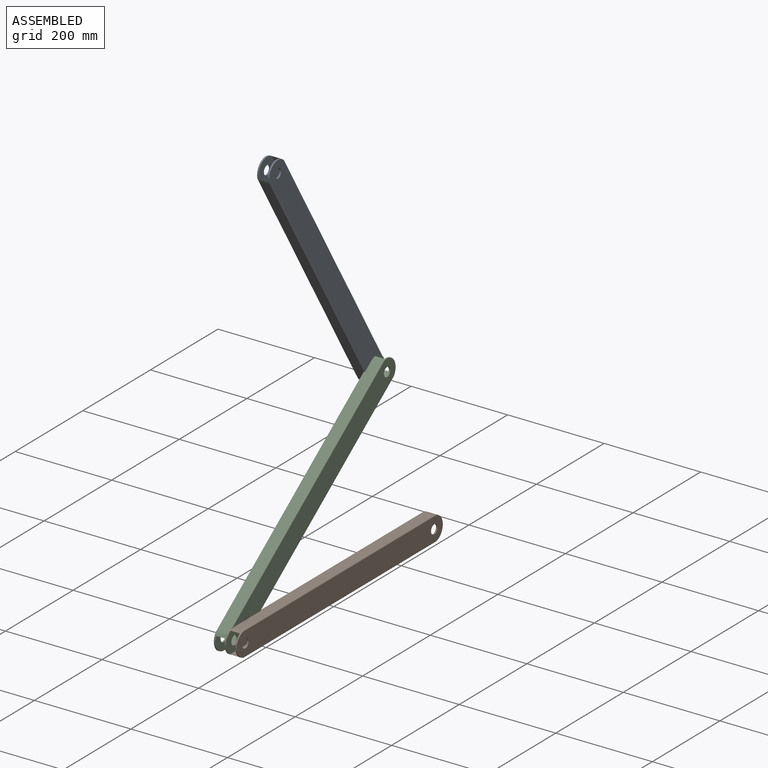
[diagram: assembled view]
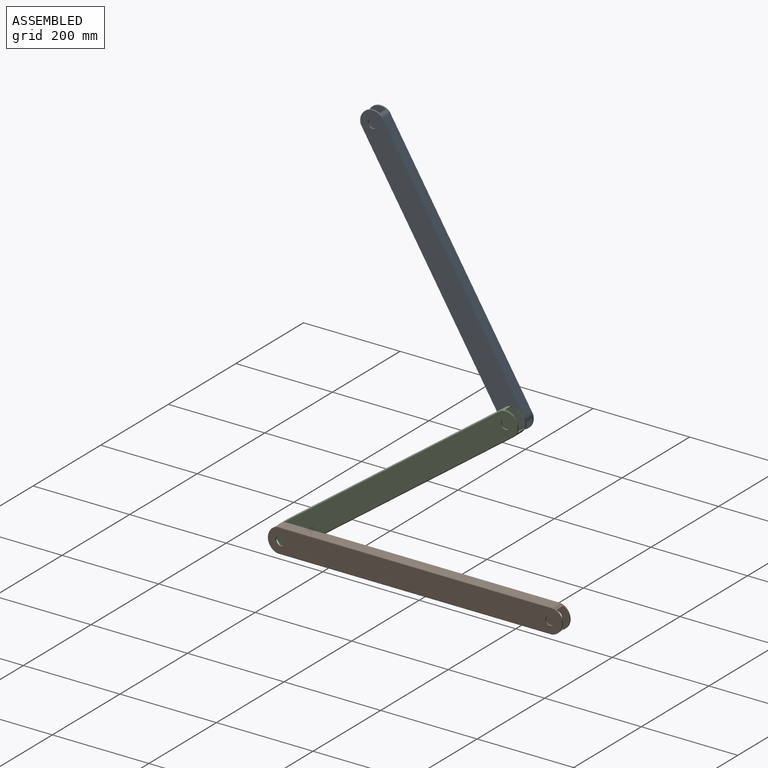
[diagram: assembled view, second angle]
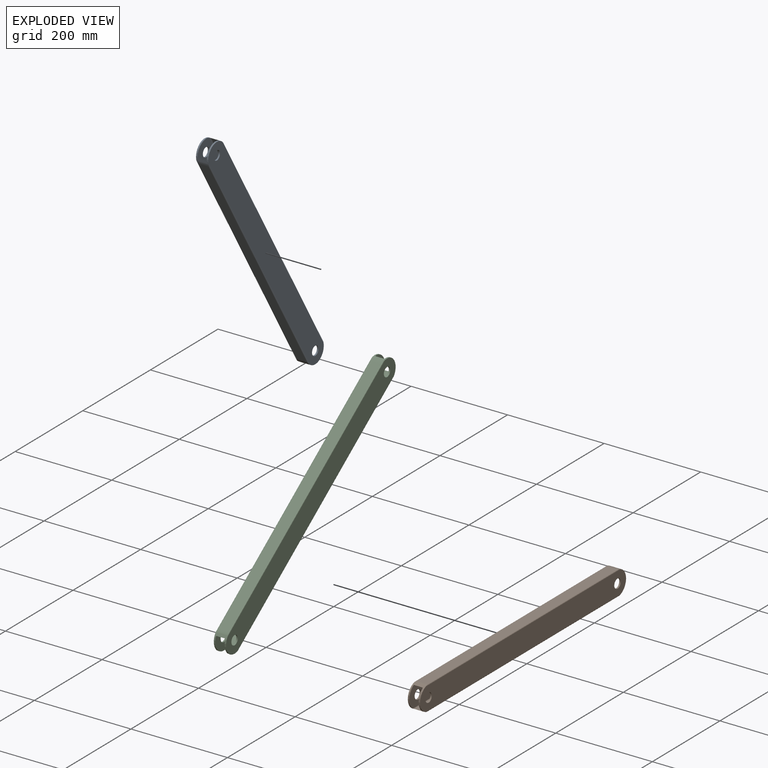
[diagram: exploded view]
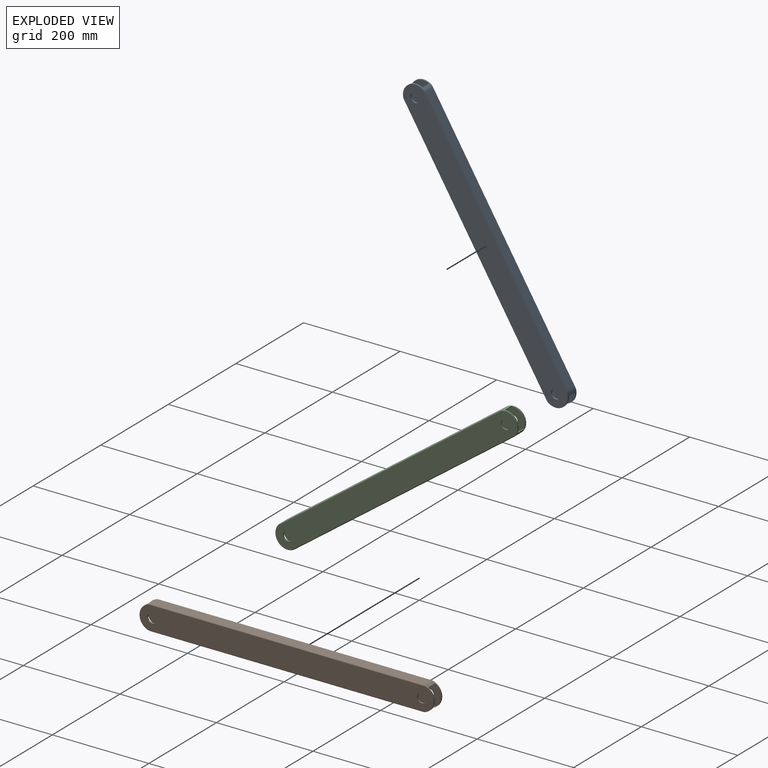
[diagram: exploded view, second angle]
ASSEMBLY  parts=3 mates=4
PART A: 22 faces, bbox 25.4x609.6x50.8 mm
  f0: plane 609.6x47.75mm, normal (1,0,0), area 28105.2mm2, adj f4,f14,f18,f19,f20,f21
  f1: plane 609.6x47.75mm, normal (-1,0,0), area 28105.2mm2, adj f5,f6,f16,f17,f20,f21
  f2: plane 609.6x41.66mm, normal (-1,0,0), area 24553.5mm2, adj f10,f11,f18,f19,f20,f21
  f3: plane 609.6x41.66mm, normal (1,0,0), area 24553.5mm2, adj f8,f13,f16,f17,f20,f21
  f4: cylinder r=1.52mm len=576.13mm, axis (0,1,0), area 1359.7mm2, adj f0,f15,f20,f21
  f5: cylinder r=1.52mm len=576.13mm, axis (0,1,0), area 1359.7mm2, adj f1,f15,f20,f21
  f6: cylinder r=1.52mm len=576.13mm, axis (0,1,0), area 1359.7mm2, adj f1,f7,f20,f21
  f7: plane 558.8x22.35mm, normal (0,0,-1), area 12490.3mm2, adj f6,f14,f20,f21
  f8: cylinder r=1.52mm len=587.88mm, axis (0,1,0), area 1400mm2, adj f3,f9,f20,f21
  f9: plane 582.93x16.26mm, normal (0,0,-1), area 9476.1mm2, adj f8,f10,f20,f21
  f10: cylinder r=1.52mm len=587.88mm, axis (0,1,0), area 1400mm2, adj f2,f9,f20,f21
  f11: cylinder r=1.52mm len=587.88mm, axis (0,1,0), area 1400mm2, adj f2,f12,f20,f21
  f12: plane 582.93x16.26mm, normal (0,0,1), area 9476.1mm2, adj f11,f13,f20,f21
  f13: cylinder r=1.52mm len=587.88mm, axis (0,1,0), area 1400mm2, adj f3,f12,f20,f21
  f14: cylinder r=1.52mm len=576.13mm, axis (0,1,0), area 1359.7mm2, adj f0,f7,f20,f21
  f15: plane 558.8x22.35mm, normal (0,0,1), area 12490.3mm2, adj f4,f5,f20,f21
  f16: cylinder r=9.53mm len=19.05mm, axis (1,0,0), area 182.4mm2, adj f1,f3
  f17: cylinder r=9.53mm len=19.05mm, axis (1,0,0), area 182.4mm2, adj f1,f3
  f18: cylinder r=9.53mm len=19.05mm, axis (1,0,0), area 182.4mm2, adj f0,f2
  f19: cylinder r=9.53mm len=19.05mm, axis (1,0,0), area 182.4mm2, adj f0,f2
  f20: cylinder r=25.4mm len=50.8mm, axis (1,0,0), area 954.8mm2, adj f0,f1,f2,f3,f4,f5,f6,f7
  f21: cylinder r=25.4mm len=50.8mm, axis (1,0,0), area 954.8mm2, adj f0,f1,f2,f3,f4,f5,f6,f7
PART B: same geometry as A
PART C: same geometry as A
PLACE A rot(axis=(-1,0,0),58.6deg) t=(-44.7,26.16,568.31)mm
PLACE B at identity fixed
PLACE C rot(axis=(1,0,0),36.2deg) t=(-22.35,-53.85,164.9)mm
MATE revolute C.f17 <-> B.f17  axis (1,0,0) through (-11.18,-279.4,0)mm
MATE parallel A.f0 <-> C.f1  axis (1,0,0) through (-32,26.16,568.31)mm
MATE parallel B.f1 <-> C.f0  axis (-1,0,0) through (-12.7,0,0)mm
MATE revolute A.f16 <-> C.f16  axis (1,0,0) through (-33.53,171.69,329.8)mm
